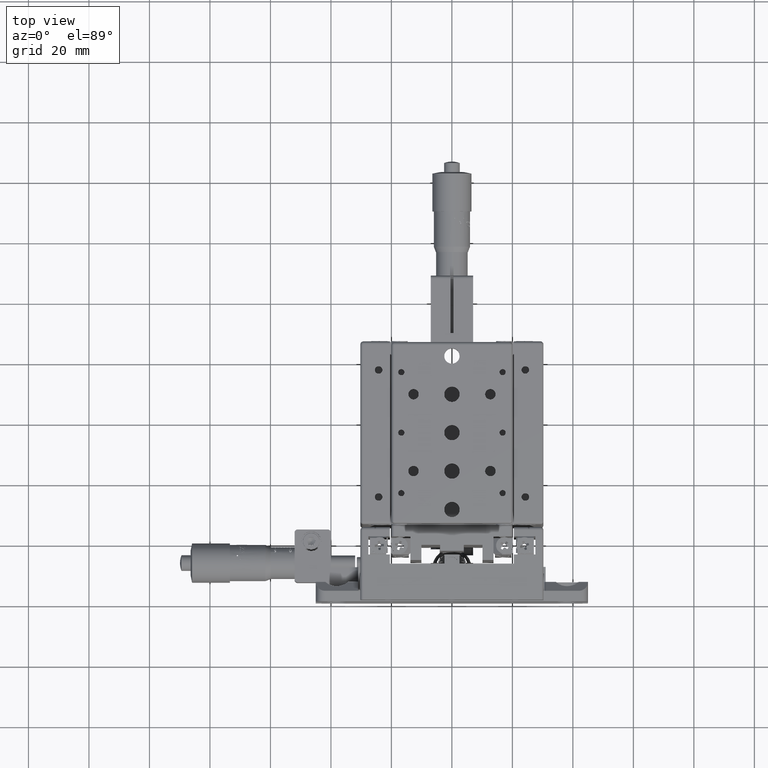
[diagram: clean part render]
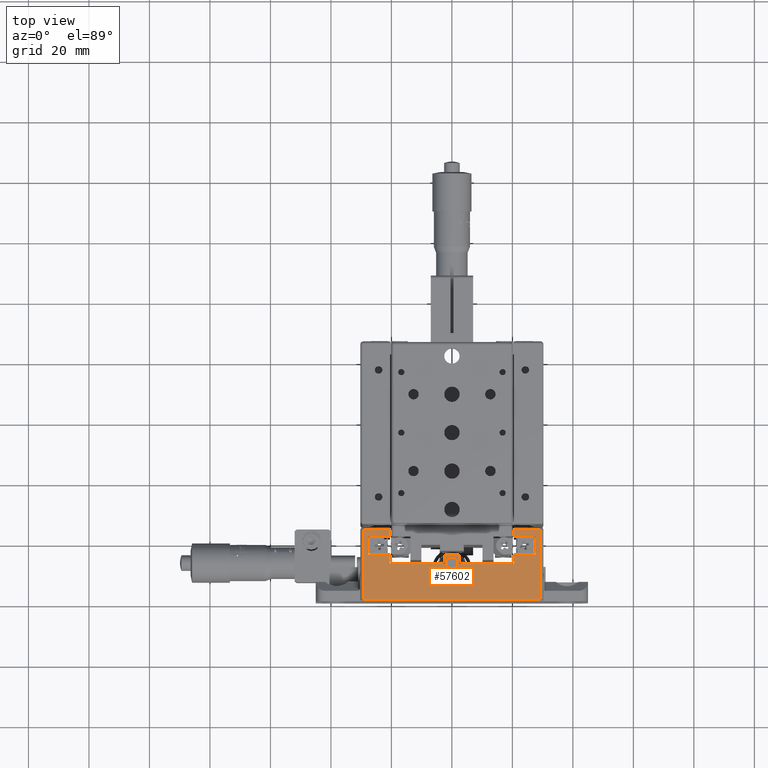
[diagram: same view with one face highlighted and labeled with its STEP entity id]
A machine part, top view. The second image highlights one B-rep face of the part: STEP entity #57602.
In plain terms, the highlighted planar face has unit normal (0, 0, -1).
Its self-contained STEP definition (entity closure, byte-faithful):
#16 = DIRECTION ( 'NONE',  ( 0.0000000000000000000, 1.000000000000000000, -0.0000000000000000000 ) ) ;
#103 = DIRECTION ( 'NONE',  ( 0.0000000000000000000, 1.000000000000000000, -0.0000000000000000000 ) ) ;
#1326 = DIRECTION ( 'NONE',  ( 0.0000000000000000000, 1.000000000000000000, -0.0000000000000000000 ) ) ;
#2577 = LINE ( 'NONE', #89319, #37092 ) ;
#2587 = ORIENTED_EDGE ( 'NONE', *, *, #19484, .T. ) ;
#3721 = EDGE_CURVE ( 'NONE', #56066, #73250, #2577, .T. ) ;
#4280 = ORIENTED_EDGE ( 'NONE', *, *, #85770, .F. ) ;
#4400 = CARTESIAN_POINT ( 'NONE',  ( -20.50000000000000000, 15.09999999999997300, 30.25000000000000000 ) ) ;
#5936 = VERTEX_POINT ( 'NONE', #37284 ) ;
#5954 = VERTEX_POINT ( 'NONE', #51196 ) ;
#6085 = CARTESIAN_POINT ( 'NONE',  ( 6.333022107613951500E-014, 15.09999999999997300, 30.25000000000000000 ) ) ;
#6498 = DIRECTION ( 'NONE',  ( -1.000000000000000000, 0.0000000000000000000, 0.0000000000000000000 ) ) ;
#6942 = LINE ( 'NONE', #51447, #59915 ) ;
#7103 = LINE ( 'NONE', #32446, #23294 ) ;
#8160 = CARTESIAN_POINT ( 'NONE',  ( 2.500000000000000000, 15.09999999999997300, 30.25000000000000000 ) ) ;
#8648 = CARTESIAN_POINT ( 'NONE',  ( -2.500000000000000000, 12.09999999999997300, 30.25000000000000000 ) ) ;
#8663 = CARTESIAN_POINT ( 'NONE',  ( 6.180383537508804500E-016, 12.29999999999997200, 30.25000000000000000 ) ) ;
#9349 = LINE ( 'NONE', #58069, #80662 ) ;
#9959 = DIRECTION ( 'NONE',  ( 1.000000000000000000, 0.0000000000000000000, 0.0000000000000000000 ) ) ;
#10423 = LINE ( 'NONE', #76840, #81693 ) ;
#12881 = EDGE_CURVE ( 'NONE', #89072, #79514, #22370, .T. ) ;
#12902 = EDGE_LOOP ( 'NONE', ( #48933, #28317, #82151, #81268, #70141, #34892, #4280, #20638, #52923, #37116, #79596, #52634, #44507, #22981, #36877, #15118, #80106, #19227, #43403, #2587 ) ) ;
#13390 = PLANE ( 'NONE',  #64653 ) ;
#13482 = LINE ( 'NONE', #83384, #84773 ) ;
#13615 = CARTESIAN_POINT ( 'NONE',  ( 20.50000000000000000, 21.09999999999996900, 30.25000000000000000 ) ) ;
#13682 = DIRECTION ( 'NONE',  ( 0.0000000000000000000, 0.0000000000000000000, -1.000000000000000000 ) ) ;
#14047 = VERTEX_POINT ( 'NONE', #13615 ) ;
#14072 = EDGE_CURVE ( 'NONE', #61834, #40104, #55550, .T. ) ;
#14084 = CARTESIAN_POINT ( 'NONE',  ( 27.60000000000002300, 21.09999999999996900, 30.25000000000000000 ) ) ;
#14198 = VERTEX_POINT ( 'NONE', #71296 ) ;
#15118 = ORIENTED_EDGE ( 'NONE', *, *, #34044, .F. ) ;
#15654 = DIRECTION ( 'NONE',  ( 1.000000000000000000, 0.0000000000000000000, 0.0000000000000000000 ) ) ;
#16207 = EDGE_CURVE ( 'NONE', #21844, #77026, #39764, .T. ) ;
#18331 = LINE ( 'NONE', #47835, #73472 ) ;
#18499 = CARTESIAN_POINT ( 'NONE',  ( 20.50000000000000000, 23.19999999999999600, 30.25000000000000000 ) ) ;
#18509 = DIRECTION ( 'NONE',  ( 0.0000000000000000000, 0.0000000000000000000, 1.000000000000000000 ) ) ;
#18889 = CARTESIAN_POINT ( 'NONE',  ( -30.25000000000000000, 23.19999999999999600, 30.25000000000000000 ) ) ;
#19227 = ORIENTED_EDGE ( 'NONE', *, *, #58656, .F. ) ;
#19484 = EDGE_CURVE ( 'NONE', #43397, #61834, #56295, .T. ) ;
#20589 = CARTESIAN_POINT ( 'NONE',  ( 6.333022107613951500E-014, 21.09999999999996900, 30.25000000000000000 ) ) ;
#20638 = ORIENTED_EDGE ( 'NONE', *, *, #79936, .T. ) ;
#21844 = VERTEX_POINT ( 'NONE', #67869 ) ;
#22370 = LINE ( 'NONE', #48347, #40657 ) ;
#22394 = LINE ( 'NONE', #84045, #59161 ) ;
#22981 = ORIENTED_EDGE ( 'NONE', *, *, #26075, .F. ) ;
#23294 = VECTOR ( 'NONE', #53275, 1000.000000000000000 ) ;
#25322 = EDGE_CURVE ( 'NONE', #77026, #14198, #9349, .T. ) ;
#25920 = VERTEX_POINT ( 'NONE', #67008 ) ;
#25930 = LINE ( 'NONE', #33523, #58374 ) ;
#26037 = CARTESIAN_POINT ( 'NONE',  ( -2.499999999999886300, 15.09999999999997300, 30.25000000000000000 ) ) ;
#26065 = CARTESIAN_POINT ( 'NONE',  ( -29.25000000000000000, 23.19999999999999600, 30.25000000000000000 ) ) ;
#26075 = EDGE_CURVE ( 'NONE', #73250, #47132, #28639, .T. ) ;
#26100 = LINE ( 'NONE', #26606, #62867 ) ;
#26606 = CARTESIAN_POINT ( 'NONE',  ( 29.25000000000000000, 24.19999999999999600, 30.25000000000000000 ) ) ;
#27400 = LINE ( 'NONE', #72150, #62036 ) ;
#27660 = DIRECTION ( 'NONE',  ( 1.000000000000000000, 0.0000000000000000000, 0.0000000000000000000 ) ) ;
#28317 = ORIENTED_EDGE ( 'NONE', *, *, #42579, .T. ) ;
#28639 = LINE ( 'NONE', #82009, #65425 ) ;
#30093 = VECTOR ( 'NONE', #51724, 1000.000000000000000 ) ;
#30887 = FACE_OUTER_BOUND ( 'NONE', #12902, .T. ) ;
#31426 = VERTEX_POINT ( 'NONE', #51546 ) ;
#31852 = LINE ( 'NONE', #55635, #48003 ) ;
#32446 = CARTESIAN_POINT ( 'NONE',  ( -27.59999999999990900, -25.94636703928867800, 30.25000000000000000 ) ) ;
#33474 = VERTEX_POINT ( 'NONE', #39132 ) ;
#33523 = CARTESIAN_POINT ( 'NONE',  ( -30.25000000000000000, 0.1999999999999966200, 30.25000000000000000 ) ) ;
#34044 = EDGE_CURVE ( 'NONE', #89072, #56066, #31852, .T. ) ;
#34420 = EDGE_CURVE ( 'NONE', #14198, #5936, #44608, .T. ) ;
#34892 = ORIENTED_EDGE ( 'NONE', *, *, #56339, .T. ) ;
#36877 = ORIENTED_EDGE ( 'NONE', *, *, #3721, .F. ) ;
#37092 = VECTOR ( 'NONE', #54839, 1000.000000000000000 ) ;
#37116 = ORIENTED_EDGE ( 'NONE', *, *, #34420, .F. ) ;
#37118 = CARTESIAN_POINT ( 'NONE',  ( 6.333022107613951500E-014, 12.09999999999997700, 30.25000000000000000 ) ) ;
#37284 = CARTESIAN_POINT ( 'NONE',  ( 27.60000000000002300, 15.09999999999997300, 30.25000000000000000 ) ) ;
#37501 = DIRECTION ( 'NONE',  ( 0.0000000000000000000, 1.000000000000000000, -0.0000000000000000000 ) ) ;
#38647 = EDGE_CURVE ( 'NONE', #42721, #31426, #83331, .T. ) ;
#39132 = CARTESIAN_POINT ( 'NONE',  ( 29.25000000000000000, 0.1999999999999966200, 30.25000000000000000 ) ) ;
#39764 = LINE ( 'NONE', #37118, #56012 ) ;
#40033 = CARTESIAN_POINT ( 'NONE',  ( -27.59999999999990900, 21.09999999999996900, 30.25000000000000000 ) ) ;
#40104 = VERTEX_POINT ( 'NONE', #48569 ) ;
#40401 = CARTESIAN_POINT ( 'NONE',  ( 20.50000000000000000, 12.09999999999997700, 30.25000000000000000 ) ) ;
#40657 = VECTOR ( 'NONE', #103, 1000.000000000000000 ) ;
#40845 = EDGE_CURVE ( 'NONE', #5954, #43397, #7103, .T. ) ;
#40866 = VERTEX_POINT ( 'NONE', #26065 ) ;
#42579 = EDGE_CURVE ( 'NONE', #40104, #40866, #82125, .T. ) ;
#42721 = VERTEX_POINT ( 'NONE', #70512 ) ;
#43397 = VERTEX_POINT ( 'NONE', #40033 ) ;
#43403 = ORIENTED_EDGE ( 'NONE', *, *, #40845, .T. ) ;
#44507 = ORIENTED_EDGE ( 'NONE', *, *, #56638, .T. ) ;
#44608 = LINE ( 'NONE', #6085, #60898 ) ;
#45886 = CARTESIAN_POINT ( 'NONE',  ( 29.25000000000000000, 23.19999999999999600, 30.25000000000000000 ) ) ;
#47132 = VERTEX_POINT ( 'NONE', #8160 ) ;
#47835 = CARTESIAN_POINT ( 'NONE',  ( -30.25000000000000000, 23.19999999999999600, 30.25000000000000000 ) ) ;
#48003 = VECTOR ( 'NONE', #62325, 1000.000000000000000 ) ;
#48347 = CARTESIAN_POINT ( 'NONE',  ( -20.50000000000000000, -25.94636703928867800, 30.25000000000000000 ) ) ;
#48569 = CARTESIAN_POINT ( 'NONE',  ( -20.50000000000000000, 23.19999999999999600, 30.25000000000000000 ) ) ;
#48933 = ORIENTED_EDGE ( 'NONE', *, *, #14072, .T. ) ;
#51196 = CARTESIAN_POINT ( 'NONE',  ( -27.59999999999990900, 15.09999999999997300, 30.25000000000000000 ) ) ;
#51447 = CARTESIAN_POINT ( 'NONE',  ( 6.333022107613951500E-014, 21.09999999999996900, 30.25000000000000000 ) ) ;
#51546 = CARTESIAN_POINT ( 'NONE',  ( 2.000000000000000400, 12.29999999999997200, 30.25000000000000000 ) ) ;
#51724 = DIRECTION ( 'NONE',  ( -3.787479589216029900E-014, 1.000000000000000000, 0.0000000000000000000 ) ) ;
#52634 = ORIENTED_EDGE ( 'NONE', *, *, #16207, .F. ) ;
#52923 = ORIENTED_EDGE ( 'NONE', *, *, #87233, .F. ) ;
#53275 = DIRECTION ( 'NONE',  ( 0.0000000000000000000, 1.000000000000000000, -0.0000000000000000000 ) ) ;
#53587 = VERTEX_POINT ( 'NONE', #14084 ) ;
#54123 = CARTESIAN_POINT ( 'NONE',  ( -20.50000000000000000, 12.09999999999997700, 30.25000000000000000 ) ) ;
#54186 = ORIENTED_EDGE ( 'NONE', *, *, #38647, .F. ) ;
#54839 = DIRECTION ( 'NONE',  ( 3.787479589216029900E-014, 1.000000000000000000, 0.0000000000000000000 ) ) ;
#55002 = CARTESIAN_POINT ( 'NONE',  ( -30.25000000000000000, 24.19999999999999600, 30.25000000000000000 ) ) ;
#55550 = LINE ( 'NONE', #83010, #74003 ) ;
#55635 = CARTESIAN_POINT ( 'NONE',  ( 6.333022107613951500E-014, 12.09999999999997700, 30.25000000000000000 ) ) ;
#56012 = VECTOR ( 'NONE', #78538, 1000.000000000000000 ) ;
#56066 = VERTEX_POINT ( 'NONE', #8648 ) ;
#56295 = LINE ( 'NONE', #20589, #74762 ) ;
#56339 = EDGE_CURVE ( 'NONE', #76910, #68153, #18331, .T. ) ;
#56638 = EDGE_CURVE ( 'NONE', #21844, #47132, #66878, .T. ) ;
#56952 = DIRECTION ( 'NONE',  ( 0.0000000000000000000, 0.0000000000000000000, 1.000000000000000000 ) ) ;
#57602 = ADVANCED_FACE ( 'NONE', ( #83815, #30887 ), #13390, .F. ) ;
#57856 = AXIS2_PLACEMENT_3D ( 'NONE', #59918, #18509, #66853 ) ;
#58069 = CARTESIAN_POINT ( 'NONE',  ( 20.50000000000000000, -25.94636703928867800, 30.25000000000000000 ) ) ;
#58374 = VECTOR ( 'NONE', #9959, 1000.000000000000000 ) ;
#58656 = EDGE_CURVE ( 'NONE', #5954, #79514, #10423, .T. ) ;
#59161 = VECTOR ( 'NONE', #1326, 1000.000000000000000 ) ;
#59299 = CARTESIAN_POINT ( 'NONE',  ( 2.500000000001554800, -25.94636703928858500, 30.25000000000000000 ) ) ;
#59915 = VECTOR ( 'NONE', #85899, 1000.000000000000000 ) ;
#59918 = CARTESIAN_POINT ( 'NONE',  ( 6.180383537508804500E-016, 12.29999999999997200, 30.25000000000000000 ) ) ;
#60898 = VECTOR ( 'NONE', #68646, 1000.000000000000000 ) ;
#61250 = CIRCLE ( 'NONE', #77561, 2.000000000000000000 ) ;
#61834 = VERTEX_POINT ( 'NONE', #80625 ) ;
#62007 = DIRECTION ( 'NONE',  ( -1.000000000000000000, 0.0000000000000000000, -0.0000000000000000000 ) ) ;
#62036 = VECTOR ( 'NONE', #79028, 1000.000000000000000 ) ;
#62108 = EDGE_CURVE ( 'NONE', #31426, #42721, #61250, .T. ) ;
#62325 = DIRECTION ( 'NONE',  ( 1.000000000000000000, 0.0000000000000000000, 0.0000000000000000000 ) ) ;
#62574 = DIRECTION ( 'NONE',  ( 1.000000000000000000, 0.0000000000000000000, 0.0000000000000000000 ) ) ;
#62867 = VECTOR ( 'NONE', #75002, 1000.000000000000000 ) ;
#63799 = VECTOR ( 'NONE', #81069, 1000.000000000000000 ) ;
#64653 = AXIS2_PLACEMENT_3D ( 'NONE', #55002, #13682, #62007 ) ;
#65425 = VECTOR ( 'NONE', #27660, 1000.000000000000000 ) ;
#66853 = DIRECTION ( 'NONE',  ( 1.000000000000000000, 0.0000000000000000000, 0.0000000000000000000 ) ) ;
#66878 = LINE ( 'NONE', #59299, #30093 ) ;
#67008 = CARTESIAN_POINT ( 'NONE',  ( -29.25000000000000000, 0.1999999999999966200, 30.25000000000000000 ) ) ;
#67869 = CARTESIAN_POINT ( 'NONE',  ( 2.500000000000113700, 12.09999999999997700, 30.25000000000000000 ) ) ;
#68153 = VERTEX_POINT ( 'NONE', #18499 ) ;
#68646 = DIRECTION ( 'NONE',  ( 1.000000000000000000, 0.0000000000000000000, 0.0000000000000000000 ) ) ;
#68970 = ORIENTED_EDGE ( 'NONE', *, *, #62108, .F. ) ;
#69575 = DIRECTION ( 'NONE',  ( 0.0000000000000000000, -1.000000000000000000, 0.0000000000000000000 ) ) ;
#70141 = ORIENTED_EDGE ( 'NONE', *, *, #87908, .T. ) ;
#70512 = CARTESIAN_POINT ( 'NONE',  ( -1.999999999999999600, 12.29999999999997200, 30.25000000000000000 ) ) ;
#71296 = CARTESIAN_POINT ( 'NONE',  ( 20.50000000000000000, 15.09999999999997300, 30.25000000000000000 ) ) ;
#72150 = CARTESIAN_POINT ( 'NONE',  ( 27.60000000000002300, -25.94636703928867800, 30.25000000000000000 ) ) ;
#73250 = VERTEX_POINT ( 'NONE', #26037 ) ;
#73363 = EDGE_CURVE ( 'NONE', #40866, #25920, #13482, .T. ) ;
#73472 = VECTOR ( 'NONE', #6498, 1000.000000000000000 ) ;
#74003 = VECTOR ( 'NONE', #16, 1000.000000000000000 ) ;
#74762 = VECTOR ( 'NONE', #62574, 1000.000000000000000 ) ;
#75002 = DIRECTION ( 'NONE',  ( 0.0000000000000000000, 1.000000000000000000, 0.0000000000000000000 ) ) ;
#76840 = CARTESIAN_POINT ( 'NONE',  ( 6.333022107613951500E-014, 15.09999999999997300, 30.25000000000000000 ) ) ;
#76910 = VERTEX_POINT ( 'NONE', #45886 ) ;
#77026 = VERTEX_POINT ( 'NONE', #40401 ) ;
#77031 = EDGE_CURVE ( 'NONE', #25920, #33474, #25930, .T. ) ;
#77561 = AXIS2_PLACEMENT_3D ( 'NONE', #8663, #56952, #15654 ) ;
#78538 = DIRECTION ( 'NONE',  ( 1.000000000000000000, 0.0000000000000000000, 0.0000000000000000000 ) ) ;
#79028 = DIRECTION ( 'NONE',  ( 0.0000000000000000000, 1.000000000000000000, -0.0000000000000000000 ) ) ;
#79514 = VERTEX_POINT ( 'NONE', #4400 ) ;
#79596 = ORIENTED_EDGE ( 'NONE', *, *, #25322, .F. ) ;
#79936 = EDGE_CURVE ( 'NONE', #14047, #53587, #6942, .T. ) ;
#80106 = ORIENTED_EDGE ( 'NONE', *, *, #12881, .T. ) ;
#80625 = CARTESIAN_POINT ( 'NONE',  ( -20.50000000000000000, 21.09999999999996900, 30.25000000000000000 ) ) ;
#80662 = VECTOR ( 'NONE', #37501, 1000.000000000000000 ) ;
#81069 = DIRECTION ( 'NONE',  ( -1.000000000000000000, 0.0000000000000000000, 0.0000000000000000000 ) ) ;
#81268 = ORIENTED_EDGE ( 'NONE', *, *, #77031, .T. ) ;
#81693 = VECTOR ( 'NONE', #83772, 1000.000000000000000 ) ;
#82009 = CARTESIAN_POINT ( 'NONE',  ( 6.333022107613951500E-014, 15.09999999999997300, 30.25000000000000000 ) ) ;
#82125 = LINE ( 'NONE', #18889, #63799 ) ;
#82151 = ORIENTED_EDGE ( 'NONE', *, *, #73363, .T. ) ;
#83010 = CARTESIAN_POINT ( 'NONE',  ( -20.50000000000000000, -25.94636703928867800, 30.25000000000000000 ) ) ;
#83331 = CIRCLE ( 'NONE', #57856, 2.000000000000000000 ) ;
#83384 = CARTESIAN_POINT ( 'NONE',  ( -29.25000000000000000, 24.19999999999999600, 30.25000000000000000 ) ) ;
#83772 = DIRECTION ( 'NONE',  ( 1.000000000000000000, 0.0000000000000000000, 0.0000000000000000000 ) ) ;
#83815 = FACE_BOUND ( 'NONE', #87592, .T. ) ;
#84045 = CARTESIAN_POINT ( 'NONE',  ( 20.50000000000000000, -25.94636703928867800, 30.25000000000000000 ) ) ;
#84773 = VECTOR ( 'NONE', #69575, 1000.000000000000000 ) ;
#85770 = EDGE_CURVE ( 'NONE', #14047, #68153, #22394, .T. ) ;
#85899 = DIRECTION ( 'NONE',  ( 1.000000000000000000, 0.0000000000000000000, 0.0000000000000000000 ) ) ;
#87233 = EDGE_CURVE ( 'NONE', #5936, #53587, #27400, .T. ) ;
#87592 = EDGE_LOOP ( 'NONE', ( #68970, #54186 ) ) ;
#87908 = EDGE_CURVE ( 'NONE', #33474, #76910, #26100, .T. ) ;
#89072 = VERTEX_POINT ( 'NONE', #54123 ) ;
#89319 = CARTESIAN_POINT ( 'NONE',  ( -2.500000000001441100, -25.94636703928858500, 30.25000000000000000 ) ) ;